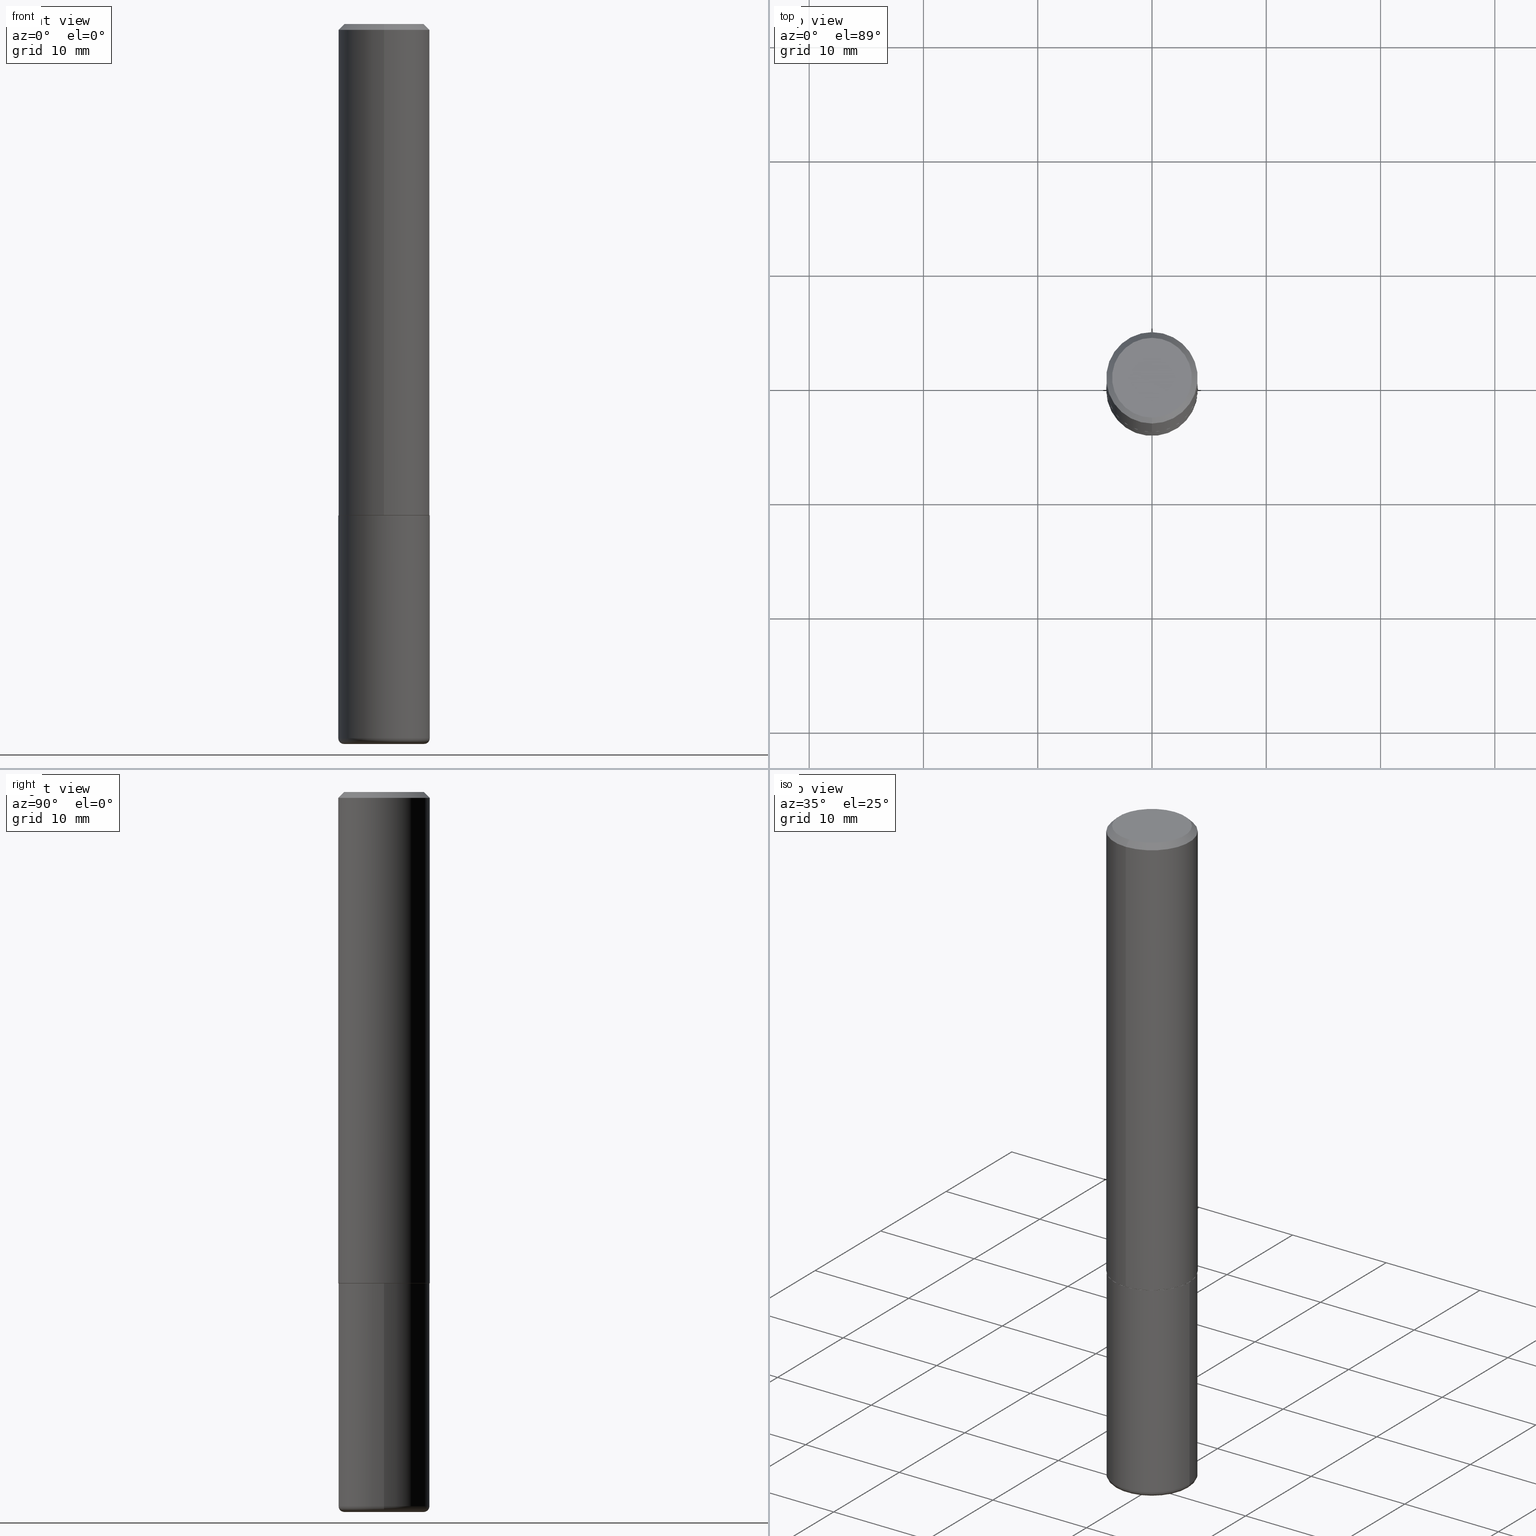
[diagram: canonical four-view strip — front | top / right | iso, engineering-drawing reading convention]
A machine part, canonical four-view strip (front | top / right | iso — engineering-drawing reading convention). The complete STEP part file that produces these views, byte-faithful:
ISO-10303-21;
HEADER;
FILE_DESCRIPTION (( 'STEP AP203' ),
    '1' );
FILE_NAME ('40015.STEP',
    '2024-03-03T20:25:39',
    ( '' ),
    ( '' ),
    'SwSTEP 2.0',
    'SolidWorks 2023',
    '' );
FILE_SCHEMA (( 'CONFIG_CONTROL_DESIGN' ));
ENDSEC;

DATA;
#1 = DATE_AND_TIME ( #74, #130 ) ;
#2 = CARTESIAN_POINT ( 'NONE',  ( -0.1378000000000000058, -7.576413724195261400E-15, -2.480300000000000171 ) ) ;
#3 = CIRCLE ( 'NONE', #58, 0.01970000000000002999 ) ;
#4 = AXIS2_PLACEMENT_3D ( 'NONE', #233, #121, #325 ) ;
#5 = AXIS2_PLACEMENT_3D ( 'NONE', #241, #361, #64 ) ;
#6 = ORIENTED_EDGE ( 'NONE', *, *, #44, .T. ) ;
#7 = DIRECTION ( 'NONE',  ( -2.446894125154584110E-29, 3.489440200954778984E-15, 1.000000000000000000 ) ) ;
#8 = EDGE_LOOP ( 'NONE', ( #148, #277, #213, #281 ) ) ;
#9 = EDGE_LOOP ( 'NONE', ( #354, #48 ) ) ;
#10 = APPROVAL_DATE_TIME ( #360, #57 ) ;
#11 = CARTESIAN_POINT ( 'NONE',  ( -1.080528434649015779E-15, -0.1575000000000000844, -0.01999999999999948347 ) ) ;
#12 = ORIENTED_EDGE ( 'NONE', *, *, #162, .T. ) ;
#13 = EDGE_CURVE ( 'NONE', #36, #187, #312, .T. ) ;
#14 = ORIENTED_EDGE ( 'NONE', *, *, #37, .F. ) ;
#15 = CIRCLE ( 'NONE', #416, 0.1565000000000000002 ) ;
#16 = CARTESIAN_POINT ( 'NONE',  ( 4.142347064474196087E-29, -5.907273316196346648E-15, -1.692900000000000293 ) ) ;
#17 = DIRECTION ( 'NONE',  ( 6.982962677686265922E-15, 1.000000000000000000, -3.489440200954778984E-15 ) ) ;
#18 = VERTEX_POINT ( 'NONE', #2 ) ;
#19 = ADVANCED_FACE ( 'NONE', ( #179 ), #240, .T. ) ;
#20 = DIRECTION ( 'NONE',  ( -2.446894125154584110E-29, 3.489440200954778984E-15, 1.000000000000000000 ) ) ;
#21 = DIRECTION ( 'NONE',  ( -2.445468806185136597E-29, 3.491481338843145583E-15, 1.000000000000000000 ) ) ;
#22 = CARTESIAN_POINT ( 'NONE',  ( 0.000000000000000000, 0.000000000000000000, 0.000000000000000000 ) ) ;
#23 = CARTESIAN_POINT ( 'NONE',  ( -1.080528434649015779E-15, -0.1575000000000000844, -0.01999999999999948347 ) ) ;
#24 = DIRECTION ( 'NONE',  ( 7.105427357601001859E-15, 1.000000000000000000, -3.491481338843145583E-15 ) ) ;
#25 = ORIENTED_EDGE ( 'NONE', *, *, #173, .F. ) ;
#26 = APPROVAL_PERSON_ORGANIZATION ( #29, #57, #300 ) ;
#27 = ADVANCED_FACE ( 'NONE', ( #394 ), #222, .F. ) ;
#28 = FACE_OUTER_BOUND ( 'NONE', #249, .T. ) ;
#29 = PERSON_AND_ORGANIZATION ( #289, #336 ) ;
#30 =( NAMED_UNIT ( * ) PLANE_ANGLE_UNIT ( ) SI_UNIT ( $, .RADIAN. ) );
#31 =( LENGTH_UNIT ( ) NAMED_UNIT ( * ) SI_UNIT ( $, .METRE. ) );
#32 = APPLICATION_PROTOCOL_DEFINITION ( 'international standard', 'config_control_design', 1994, #87 ) ;
#33 = EDGE_CURVE ( 'NONE', #18, #189, #229, .T. ) ;
#34 = AXIS2_PLACEMENT_3D ( 'NONE', #275, #174, #266 ) ;
#35 = EDGE_LOOP ( 'NONE', ( #313, #402, #353, #338 ) ) ;
#36 = VERTEX_POINT ( 'NONE', #214 ) ;
#37 = EDGE_CURVE ( 'NONE', #217, #187, #298, .T. ) ;
#38 = CARTESIAN_POINT ( 'NONE',  ( 1.111999381464598010E-15, 0.1564999999999940883, -1.692900000000000960 ) ) ;
#39 = CALENDAR_DATE ( 2024, 3, 3 ) ;
#40 = DIRECTION ( 'NONE',  ( 1.000000000000000000, -6.982962677686273021E-15, 4.883557194083115143E-29 ) ) ;
#41 = EDGE_LOOP ( 'NONE', ( #282, #114 ) ) ;
#42 = CIRCLE ( 'NONE', #4, 0.1575000000000000011 ) ;
#43 = VECTOR ( 'NONE', #316, 39.37007874015748143 ) ;
#44 = EDGE_CURVE ( 'NONE', #18, #376, #204, .T. ) ;
#45 = CARTESIAN_POINT ( 'NONE',  ( 4.893788250309175717E-31, -6.978880401909569159E-17, -0.02000000000000003511 ) ) ;
#46 = FACE_OUTER_BOUND ( 'NONE', #307, .T. ) ;
#47 = CARTESIAN_POINT ( 'NONE',  ( 4.139934141990818918E-29, -5.910728758527562653E-15, -1.692900000000000293 ) ) ;
#48 = ORIENTED_EDGE ( 'NONE', *, *, #33, .F. ) ;
#49 = LINE ( 'NONE', #226, #235 ) ;
#50 = AXIS2_PLACEMENT_3D ( 'NONE', #390, #220, #244 ) ;
#51 = AXIS2_PLACEMENT_3D ( 'NONE', #384, #236, #356 ) ;
#52 = ORIENTED_EDGE ( 'NONE', *, *, #37, .T. ) ;
#53 = DIRECTION ( 'NONE',  ( -6.982962677686265922E-15, -1.000000000000000000, 3.491179544618866730E-15 ) ) ;
#54 = VERTEX_POINT ( 'NONE', #55 ) ;
#55 = CARTESIAN_POINT ( 'NONE',  ( 1.029986994958724774E-15, 0.1375000000000000944, -5.398378589523385849E-16 ) ) ;
#56 = CARTESIAN_POINT ( 'NONE',  ( 0.1575000000000000011, -7.010545380263150133E-15, -1.692900000000000293 ) ) ;
#57 = APPROVAL ( #61, 'UNSPECIFIED' ) ;
#58 = AXIS2_PLACEMENT_3D ( 'NONE', #160, #181, #320 ) ;
#59 = SECURITY_CLASSIFICATION ( '', '', #110 ) ;
#60 = EDGE_CURVE ( 'NONE', #105, #54, #184, .T. ) ;
#61 = APPROVAL_STATUS ( 'not_yet_approved' ) ;
#62 = LINE ( 'NONE', #207, #254 ) ;
#63 = EDGE_LOOP ( 'NONE', ( #293, #259 ) ) ;
#64 = DIRECTION ( 'NONE',  ( 1.000000000000000000, 0.000000000000000000, 0.000000000000000000 ) ) ;
#65 = CIRCLE ( 'NONE', #357, 0.1378000000000000058 ) ;
#66 = LOCAL_TIME ( 15, 25, 39.00000000000000000, #382 ) ;
#67 = EDGE_CURVE ( 'NONE', #54, #105, #215, .T. ) ;
#68 = PERSON_AND_ORGANIZATION_ROLE ( 'design_owner' ) ;
#69 = APPROVAL_STATUS ( 'not_yet_approved' ) ;
#70 = ORIENTED_EDGE ( 'NONE', *, *, #211, .T. ) ;
#71 = CALENDAR_DATE ( 2024, 3, 3 ) ;
#72 = AXIS2_PLACEMENT_3D ( 'NONE', #411, #260, #157 ) ;
#73 = LOCAL_TIME ( 15, 25, 39.00000000000000000, #146 ) ;
#74 = CALENDAR_DATE ( 2024, 3, 3 ) ;
#75 = ORIENTED_EDGE ( 'NONE', *, *, #247, .T. ) ;
#76 = SHAPE_DEFINITION_REPRESENTATION ( #127, #308 ) ;
#77 = ORIENTED_EDGE ( 'NONE', *, *, #349, .F. ) ;
#78 = FACE_OUTER_BOUND ( 'NONE', #221, .T. ) ;
#79 = CC_DESIGN_DATE_AND_TIME_ASSIGNMENT ( #256, #251, ( #418 ) ) ;
#80 = CARTESIAN_POINT ( 'NONE',  ( 4.139900170349041117E-29, -5.903783875995391742E-15, -1.691900000000000404 ) ) ;
#81 = ORIENTED_EDGE ( 'NONE', *, *, #88, .F. ) ;
#82 = CARTESIAN_POINT ( 'NONE',  ( -1.099816621735546854E-15, -0.1575000000000061351, -1.691899999999999737 ) ) ;
#83 = ORIENTED_EDGE ( 'NONE', *, *, #247, .F. ) ;
#84 = VECTOR ( 'NONE', #317, 39.37007874015748143 ) ;
#85 = APPROVAL_PERSON_ORGANIZATION ( #332, #359, #392 ) ;
#86 = DIRECTION ( 'NONE',  ( -2.446894125154584110E-29, 3.489440200954778984E-15, 1.000000000000000000 ) ) ;
#87 = APPLICATION_CONTEXT ( 'configuration controlled 3d designs of mechanical parts and assemblies' ) ;
#88 = EDGE_CURVE ( 'NONE', #177, #376, #118, .T. ) ;
#89 = CARTESIAN_POINT ( 'NONE',  ( -0.1575000000000000011, -6.131829061620345009E-15, -1.692900000000000293 ) ) ;
#90 = DIRECTION ( 'NONE',  ( -2.446894125154584110E-29, 3.489440200954778984E-15, 1.000000000000000000 ) ) ;
#91 = DIRECTION ( 'NONE',  ( -6.982962677686265133E-15, -1.000000000000000000, 3.489440200954778195E-15 ) ) ;
#92 = CARTESIAN_POINT ( 'NONE',  ( 0.000000000000000000, 0.000000000000000000, 0.000000000000000000 ) ) ;
#93 = AXIS2_PLACEMENT_3D ( 'NONE', #145, #304, #40 ) ;
#94 = EDGE_LOOP ( 'NONE', ( #223, #70, #119, #25 ) ) ;
#95 = EDGE_CURVE ( 'NONE', #152, #339, #274, .T. ) ;
#96 = AXIS2_PLACEMENT_3D ( 'NONE', #350, #20, #347 ) ;
#97 = CC_DESIGN_PERSON_AND_ORGANIZATION_ASSIGNMENT ( #248, #238, ( #59 ) ) ;
#98 = CARTESIAN_POINT ( 'NONE',  ( -0.1575000000000000011, 1.119104808822157801E-15, -7.747322767151475583E-30 ) ) ;
#99 = PERSON_AND_ORGANIZATION ( #289, #336 ) ;
#100 = EDGE_CURVE ( 'NONE', #105, #231, #193, .T. ) ;
#101 = DIRECTION ( 'NONE',  ( 5.024295867788490741E-15, 0.7071067811866103003, 0.7071067811864847341 ) ) ;
#102 = CIRCLE ( 'NONE', #150, 0.1575000000000002232 ) ;
#103 = CC_DESIGN_APPROVAL ( #57, ( #318 ) ) ;
#104 = ADVANCED_FACE ( 'NONE', ( #198 ), #208, .T. ) ;
#105 = VERTEX_POINT ( 'NONE', #284 ) ;
#106 = CARTESIAN_POINT ( 'NONE',  ( 0.1378000000000000058, -9.622173421717822812E-15, -2.480300000000000171 ) ) ;
#107 = CARTESIAN_POINT ( 'NONE',  ( 4.139900170349041117E-29, -5.903783875995391742E-15, -1.691900000000000404 ) ) ;
#108 = AXIS2_PLACEMENT_3D ( 'NONE', #408, #232, #319 ) ;
#109 = CC_DESIGN_DATE_AND_TIME_ASSIGNMENT ( #415, #385, ( #59 ) ) ;
#110 = SECURITY_CLASSIFICATION_LEVEL ( 'unclassified' ) ;
#111 = ORIENTED_EDGE ( 'NONE', *, *, #95, .T. ) ;
#112 = ORIENTED_EDGE ( 'NONE', *, *, #378, .T. ) ;
#113 = DIRECTION ( 'NONE',  ( 1.000000000000000000, -6.982962677686265922E-15, 0.000000000000000000 ) ) ;
#114 = ORIENTED_EDGE ( 'NONE', *, *, #183, .F. ) ;
#115 = DIRECTION ( 'NONE',  ( -6.982962677686265922E-15, -1.000000000000000000, 3.491179544618866730E-15 ) ) ;
#116 = DIRECTION ( 'NONE',  ( -2.446894125154584110E-29, 3.489440200954778984E-15, 1.000000000000000000 ) ) ;
#117 = DIRECTION ( 'NONE',  ( -2.445468806185136597E-29, 3.491481338843145583E-15, 1.000000000000000000 ) ) ;
#118 = CIRCLE ( 'NONE', #375, 0.1575000000000000011 ) ;
#119 = ORIENTED_EDGE ( 'NONE', *, *, #349, .T. ) ;
#120 = CARTESIAN_POINT ( 'NONE',  ( 4.139934141990818918E-29, -5.910728758527562653E-15, -1.692900000000000293 ) ) ;
#121 = DIRECTION ( 'NONE',  ( -2.445468806185136597E-29, 3.491481338843145583E-15, 1.000000000000000000 ) ) ;
#122 = EDGE_CURVE ( 'NONE', #339, #152, #129, .T. ) ;
#123 = EDGE_LOOP ( 'NONE', ( #374, #252, #165, #369 ) ) ;
#124 = LINE ( 'NONE', #258, #43 ) ;
#125 = ORIENTED_EDGE ( 'NONE', *, *, #122, .T. ) ;
#126 = DIRECTION ( 'NONE',  ( -1.000000000000000000, 7.105427357601014480E-15, 0.000000000000000000 ) ) ;
#127 = PRODUCT_DEFINITION_SHAPE ( 'NONE', 'NONE',  #418 ) ;
#128 = APPROVAL ( #151, 'UNSPECIFIED' ) ;
#129 = CIRCLE ( 'NONE', #239, 0.1575000000000000011 ) ;
#130 = LOCAL_TIME ( 15, 25, 39.00000000000000000, #182 ) ;
#131 = VERTEX_POINT ( 'NONE', #344 ) ;
#132 = ADVANCED_FACE ( 'NONE', ( #194 ), #326, .T. ) ;
#133 = FACE_OUTER_BOUND ( 'NONE', #377, .T. ) ;
#134 = CIRCLE ( 'NONE', #191, 0.1575000000000000289 ) ;
#135 = PERSON_AND_ORGANIZATION ( #289, #336 ) ;
#136 = PERSON_AND_ORGANIZATION_ROLE ( 'design_supplier' ) ;
#137 =( CONVERSION_BASED_UNIT ( 'INCH', #141 ) LENGTH_UNIT ( ) NAMED_UNIT ( #197 ) );
#138 = LINE ( 'NONE', #348, #299 ) ;
#139 = EDGE_CURVE ( 'NONE', #376, #177, #42, .T. ) ;
#140 = CC_DESIGN_PERSON_AND_ORGANIZATION_ASSIGNMENT ( #99, #68, ( #414 ) ) ;
#141 = LENGTH_MEASURE_WITH_UNIT ( LENGTH_MEASURE( 0.02539999999999999897 ), #31 );
#142 = AXIS2_PLACEMENT_3D ( 'NONE', #45, #364, #147 ) ;
#143 = ADVANCED_FACE ( 'NONE', ( #199 ), #379, .T. ) ;
#144 = ORIENTED_EDGE ( 'NONE', *, *, #100, .T. ) ;
#145 = CARTESIAN_POINT ( 'NONE',  ( 6.017320544499148018E-29, -8.591138982357444151E-15, -2.460600000000000342 ) ) ;
#146 = COORDINATED_UNIVERSAL_TIME_OFFSET ( 5, 0, .BEHIND. ) ;
#147 = DIRECTION ( 'NONE',  ( 6.982962677686264344E-15, 1.000000000000000000, -3.496114991891764787E-15 ) ) ;
#148 = ORIENTED_EDGE ( 'NONE', *, *, #88, .T. ) ;
#149 = DIRECTION ( 'NONE',  ( 2.446894125154583830E-29, -3.489440200954778984E-15, -1.000000000000000000 ) ) ;
#150 = AXIS2_PLACEMENT_3D ( 'NONE', #80, #250, #314 ) ;
#151 = APPROVAL_STATUS ( 'not_yet_approved' ) ;
#152 = VERTEX_POINT ( 'NONE', #56 ) ;
#153 = ADVANCED_FACE ( 'NONE', ( #133 ), #158, .T. ) ;
#154 = DIRECTION ( 'NONE',  ( -6.982962677686265922E-15, -1.000000000000000000, 3.491179544618866730E-15 ) ) ;
#155 = ORIENTED_EDGE ( 'NONE', *, *, #60, .F. ) ;
#156 = LINE ( 'NONE', #334, #413 ) ;
#157 = DIRECTION ( 'NONE',  ( -6.982962677686265922E-15, -1.000000000000000000, 3.489440200954779378E-15 ) ) ;
#158 = CYLINDRICAL_SURFACE ( 'NONE', #268, 0.1575000000000001399 ) ;
#159 = AXIS2_PLACEMENT_3D ( 'NONE', #167, #290, #412 ) ;
#160 = CARTESIAN_POINT ( 'NONE',  ( 0.1378000000000000058, -9.553391239342613205E-15, -2.460600000000000342 ) ) ;
#161 = APPROVAL_PERSON_ORGANIZATION ( #209, #128, #331 ) ;
#162 = EDGE_CURVE ( 'NONE', #189, #18, #65, .T. ) ;
#163 = VERTEX_POINT ( 'NONE', #343 ) ;
#164 = CARTESIAN_POINT ( 'NONE',  ( -0.1575000000000000289, -7.472034173535286547E-15, -2.460599999999999898 ) ) ;
#165 = ORIENTED_EDGE ( 'NONE', *, *, #276, .T. ) ;
#166 = CARTESIAN_POINT ( 'NONE',  ( 6.065496279980994755E-29, -8.659921164732655335E-15, -2.480300000000000171 ) ) ;
#167 = CARTESIAN_POINT ( 'NONE',  ( 4.142347064474196087E-29, -5.907273316196346648E-15, -1.692900000000000293 ) ) ;
#168 = DIRECTION ( 'NONE',  ( -2.446894125154584110E-29, 3.489440200954778984E-15, 1.000000000000000000 ) ) ;
#169 = UNCERTAINTY_MEASURE_WITH_UNIT (LENGTH_MEASURE( 1.000000000000000082E-05 ), #137, 'distance_accuracy_value', 'NONE');
#170 = DIRECTION ( 'NONE',  ( -2.445468806185136597E-29, 3.491481338843145583E-15, 1.000000000000000000 ) ) ;
#171 = AXIS2_PLACEMENT_3D ( 'NONE', #341, #149, #17 ) ;
#172 = DIRECTION ( 'NONE',  ( 1.000000000000000000, -6.982962677686273021E-15, 4.883557194083115143E-29 ) ) ;
#173 = EDGE_CURVE ( 'NONE', #163, #231, #134, .T. ) ;
#174 = DIRECTION ( 'NONE',  ( -2.445468806185136597E-29, 3.491481338843145583E-15, 1.000000000000000000 ) ) ;
#175 = DIRECTION ( 'NONE',  ( 2.446894125154584110E-29, -3.489440200954778984E-15, -1.000000000000000000 ) ) ;
#176 = CARTESIAN_POINT ( 'NONE',  ( 4.142347064474196087E-29, -5.907273316196346648E-15, -1.692900000000000293 ) ) ;
#177 = VERTEX_POINT ( 'NONE', #253 ) ;
#178 = AXIS2_PLACEMENT_3D ( 'NONE', #16, #7, #154 ) ;
#179 = FACE_OUTER_BOUND ( 'NONE', #8, .T. ) ;
#180 = EDGE_CURVE ( 'NONE', #177, #152, #156, .T. ) ;
#181 = DIRECTION ( 'NONE',  ( -6.982962677686266711E-15, -1.000000000000000000, 3.491481338843145583E-15 ) ) ;
#182 = COORDINATED_UNIVERSAL_TIME_OFFSET ( 5, 0, .BEHIND. ) ;
#183 = EDGE_CURVE ( 'NONE', #36, #131, #351, .T. ) ;
#184 = CIRCLE ( 'NONE', #96, 0.1375000000000000944 ) ;
#185 = CONICAL_SURFACE ( 'NONE', #196, 0.1565000000000000002, 0.7853981633975336552 ) ;
#186 = CARTESIAN_POINT ( 'NONE',  ( 4.893788250309175717E-31, -6.978880401909569159E-17, -0.02000000000000003511 ) ) ;
#187 = VERTEX_POINT ( 'NONE', #397 ) ;
#188 = DIRECTION ( 'NONE',  ( -2.446894125154584110E-29, 3.489440200954778984E-15, 1.000000000000000000 ) ) ;
#189 = VERTEX_POINT ( 'NONE', #106 ) ;
#190 = ORIENTED_EDGE ( 'NONE', *, *, #296, .T. ) ;
#191 = AXIS2_PLACEMENT_3D ( 'NONE', #186, #188, #306 ) ;
#192 = CYLINDRICAL_SURFACE ( 'NONE', #295, 0.1575000000000000011 ) ;
#193 = LINE ( 'NONE', #23, #84 ) ;
#194 = FACE_OUTER_BOUND ( 'NONE', #9, .T. ) ;
#195 = DIRECTION ( 'NONE',  ( 2.438088387897960049E-29, -3.491481338843145188E-15, -1.000000000000000000 ) ) ;
#196 = AXIS2_PLACEMENT_3D ( 'NONE', #176, #86, #115 ) ;
#197 = DIMENSIONAL_EXPONENTS ( 1.000000000000000000, 0.000000000000000000, 0.000000000000000000, 0.000000000000000000, 0.000000000000000000, 0.000000000000000000, 0.000000000000000000 ) ;
#198 = FACE_OUTER_BOUND ( 'NONE', #305, .T. ) ;
#199 = FACE_OUTER_BOUND ( 'NONE', #218, .T. ) ;
#200 = DIRECTION ( 'NONE',  ( -2.446894125154584110E-29, 3.489440200954778984E-15, 1.000000000000000000 ) ) ;
#201 = DIRECTION ( 'NONE',  ( -2.446894125154584110E-29, 3.489440200954778984E-15, 1.000000000000000000 ) ) ;
#202 = DIRECTION ( 'NONE',  ( -2.445468806185136597E-29, 3.491481338843145583E-15, 1.000000000000000000 ) ) ;
#203 = AXIS2_PLACEMENT_3D ( 'NONE', #120, #195, #352 ) ;
#204 = CIRCLE ( 'NONE', #330, 0.01970000000000002999 ) ;
#205 = CONICAL_SURFACE ( 'NONE', #262, 0.1575000000000000289, 0.7853981633974471688 ) ;
#206 = PERSON_AND_ORGANIZATION ( #289, #336 ) ;
#207 = CARTESIAN_POINT ( 'NONE',  ( -1.092833659057859065E-15, -0.1565000000000058844, -1.692899999999999849 ) ) ;
#208 = CONICAL_SURFACE ( 'NONE', #159, 0.1565000000000000002, 0.7853981633975336552 ) ;
#209 = PERSON_AND_ORGANIZATION ( #289, #336 ) ;
#210 = APPLICATION_PROTOCOL_DEFINITION ( 'international standard', 'config_control_design', 1994, #264 ) ;
#211 = EDGE_CURVE ( 'NONE', #187, #217, #102, .T. ) ;
#212 = MECHANICAL_CONTEXT ( 'NONE', #87, 'mechanical' ) ;
#213 = ORIENTED_EDGE ( 'NONE', *, *, #95, .F. ) ;
#214 = CARTESIAN_POINT ( 'NONE',  ( 1.115552095143399501E-15, 0.1564999999999940883, -1.692900000000000960 ) ) ;
#215 = CIRCLE ( 'NONE', #72, 0.1375000000000000944 ) ;
#216 = DATE_AND_TIME ( #71, #246 ) ;
#217 = VERTEX_POINT ( 'NONE', #82 ) ;
#218 = EDGE_LOOP ( 'NONE', ( #12, #6, #81, #327 ) ) ;
#219 = PLANE ( 'NONE',  #203 ) ;
#220 = DIRECTION ( 'NONE',  ( -2.445468806185136597E-29, 3.491481338843145583E-15, 1.000000000000000000 ) ) ;
#221 = EDGE_LOOP ( 'NONE', ( #111, #125 ) ) ;
#222 = PLANE ( 'NONE',  #171 ) ;
#223 = ORIENTED_EDGE ( 'NONE', *, *, #378, .F. ) ;
#224 = DIRECTION ( 'NONE',  ( 1.000000000000000000, -6.982962677686268288E-15, 0.000000000000000000 ) ) ;
#225 = ADVANCED_FACE ( 'NONE', ( #404 ), #355, .T. ) ;
#226 = CARTESIAN_POINT ( 'NONE',  ( -1.099816621735587677E-15, -0.1575000000000001399, 5.495868316503780705E-16 ) ) ;
#227 = CARTESIAN_POINT ( 'NONE',  ( 4.893788250309175717E-31, -6.978880401909569159E-17, -0.02000000000000003511 ) ) ;
#228 = CARTESIAN_POINT ( 'NONE',  ( 6.017320544499146897E-29, -8.591138982357444151E-15, -2.460599999999999898 ) ) ;
#229 = CIRCLE ( 'NONE', #50, 0.1378000000000000058 ) ;
#230 = DIRECTION ( 'NONE',  ( 1.000000000000000000, -6.982962677686265922E-15, 4.876176775795935232E-29 ) ) ;
#231 = VERTEX_POINT ( 'NONE', #11 ) ;
#232 = DIRECTION ( 'NONE',  ( 2.438088387897960049E-29, -3.491481338843145188E-15, -1.000000000000000000 ) ) ;
#233 = CARTESIAN_POINT ( 'NONE',  ( 6.017320544499146897E-29, -8.591138982357444151E-15, -2.460599999999999898 ) ) ;
#234 = CLOSED_SHELL ( 'NONE', ( #19, #143, #263, #391, #225, #132 ) ) ;
#235 = VECTOR ( 'NONE', #373, 39.37007874015748143 ) ;
#236 = DIRECTION ( 'NONE',  ( -2.446894125154583830E-29, 3.489440200954778984E-15, 1.000000000000000000 ) ) ;
#237 = CC_DESIGN_PERSON_AND_ORGANIZATION_ASSIGNMENT ( #297, #136, ( #318 ) ) ;
#238 = PERSON_AND_ORGANIZATION_ROLE ( 'classification_officer' ) ;
#239 = AXIS2_PLACEMENT_3D ( 'NONE', #403, #117, #224 ) ;
#240 = CYLINDRICAL_SURFACE ( 'NONE', #34, 0.1575000000000000011 ) ;
#241 = CARTESIAN_POINT ( 'NONE',  ( 0.000000000000000000, 0.000000000000000000, 0.000000000000000000 ) ) ;
#242 = ADVANCED_FACE ( 'NONE', ( #245 ), #342, .T. ) ;
#243 = ORIENTED_EDGE ( 'NONE', *, *, #291, .F. ) ;
#244 = DIRECTION ( 'NONE',  ( 1.000000000000000000, -6.982962677686265922E-15, 0.000000000000000000 ) ) ;
#245 = FACE_OUTER_BOUND ( 'NONE', #265, .T. ) ;
#246 = LOCAL_TIME ( 15, 25, 39.00000000000000000, #363 ) ;
#247 = EDGE_CURVE ( 'NONE', #231, #163, #292, .T. ) ;
#248 = PERSON_AND_ORGANIZATION ( #289, #336 ) ;
#249 = EDGE_LOOP ( 'NONE', ( #190, #393, #14, #340 ) ) ;
#250 = DIRECTION ( 'NONE',  ( -2.446894125154584110E-29, 3.489440200954778984E-15, 1.000000000000000000 ) ) ;
#251 = DATE_TIME_ROLE ( 'creation_date' ) ;
#252 = ORIENTED_EDGE ( 'NONE', *, *, #33, .T. ) ;
#253 = CARTESIAN_POINT ( 'NONE',  ( 0.1575000000000000289, -9.690955604093032420E-15, -2.460599999999999898 ) ) ;
#254 = VECTOR ( 'NONE', #329, 39.37007874015748143 ) ;
#255 = DIRECTION ( 'NONE',  ( -6.982962677686265922E-15, -1.000000000000000000, 3.469013325287948560E-15 ) ) ;
#256 = DATE_AND_TIME ( #395, #328 ) ;
#257 = CYLINDRICAL_SURFACE ( 'NONE', #303, 0.1575000000000001399 ) ;
#258 = CARTESIAN_POINT ( 'NONE',  ( 1.119104808822158392E-15, 0.1575000000000001399, -5.495868316503780705E-16 ) ) ;
#259 = ORIENTED_EDGE ( 'NONE', *, *, #60, .T. ) ;
#260 = DIRECTION ( 'NONE',  ( -2.446894125154584110E-29, 3.489440200954778984E-15, 1.000000000000000000 ) ) ;
#261 = CLOSED_SHELL ( 'NONE', ( #405, #153, #242, #322, #302, #104, #362, #27 ) ) ;
#262 = AXIS2_PLACEMENT_3D ( 'NONE', #227, #175, #272 ) ;
#263 = ADVANCED_FACE ( 'NONE', ( #78 ), #219, .F. ) ;
#264 = APPLICATION_CONTEXT ( 'configuration controlled 3d designs of mechanical parts and assemblies' ) ;
#265 = EDGE_LOOP ( 'NONE', ( #155, #144, #75, #389 ) ) ;
#266 = DIRECTION ( 'NONE',  ( 1.000000000000000000, -6.982962677686265922E-15, 4.876176775795935232E-29 ) ) ;
#267 = DIRECTION ( 'NONE',  ( -2.445468806185136877E-29, 3.491481338843145188E-15, 1.000000000000000000 ) ) ;
#268 = AXIS2_PLACEMENT_3D ( 'NONE', #279, #168, #91 ) ;
#269 = CC_DESIGN_APPROVAL ( #359, ( #418 ) ) ;
#270 = PERSON_AND_ORGANIZATION_ROLE ( 'creator' ) ;
#271 = FACE_OUTER_BOUND ( 'NONE', #94, .T. ) ;
#272 = DIRECTION ( 'NONE',  ( 6.982962677686264344E-15, 1.000000000000000000, -3.496114991891764787E-15 ) ) ;
#273 = MANIFOLD_SOLID_BREP ( 'Body-Move/Copy2[2]', #261 ) ;
#274 = CIRCLE ( 'NONE', #335, 0.1575000000000000011 ) ;
#275 = CARTESIAN_POINT ( 'NONE',  ( 0.000000000000000000, 0.000000000000000000, 0.000000000000000000 ) ) ;
#276 = EDGE_CURVE ( 'NONE', #189, #177, #3, .T. ) ;
#277 = ORIENTED_EDGE ( 'NONE', *, *, #291, .T. ) ;
#278 = CARTESIAN_POINT ( 'NONE',  ( 4.893788250309175717E-31, -6.978880401909569159E-17, -0.02000000000000003511 ) ) ;
#279 = CARTESIAN_POINT ( 'NONE',  ( 0.000000000000000000, 0.000000000000000000, 0.000000000000000000 ) ) ;
#280 = APPROVAL_DATE_TIME ( #1, #128 ) ;
#281 = ORIENTED_EDGE ( 'NONE', *, *, #180, .F. ) ;
#282 = ORIENTED_EDGE ( 'NONE', *, *, #296, .F. ) ;
#283 = MANIFOLD_SOLID_BREP ( 'Body-Move/Copy2[1]', #234 ) ;
#284 = CARTESIAN_POINT ( 'NONE',  ( -1.011923454671301040E-15, -0.1375000000000000944, 4.197581963102262963E-16 ) ) ;
#285 = ORIENTED_EDGE ( 'NONE', *, *, #183, .T. ) ;
#286 = DIRECTION ( 'NONE',  ( 1.000000000000000000, -6.982962677686268288E-15, 0.000000000000000000 ) ) ;
#287 = AXIS2_PLACEMENT_3D ( 'NONE', #107, #201, #255 ) ;
#288 = DIRECTION ( 'NONE',  ( 4.937700262164541731E-15, 0.7071067811865442421, -0.7071067811865507924 ) ) ;
#289 = PERSON ( 'UNSPECIFIED', 'UNSPECIFIED', 'UNSPECIFIED', ('UNSPECIFIED'), ('UNSPECIFIED'), ('UNSPECIFIED') ) ;
#290 = DIRECTION ( 'NONE',  ( -2.446894125154584110E-29, 3.489440200954778984E-15, 1.000000000000000000 ) ) ;
#291 = EDGE_CURVE ( 'NONE', #376, #339, #409, .T. ) ;
#292 = CIRCLE ( 'NONE', #370, 0.1575000000000000289 ) ;
#293 = ORIENTED_EDGE ( 'NONE', *, *, #67, .T. ) ;
#294 = ORIENTED_EDGE ( 'NONE', *, *, #139, .T. ) ;
#295 = AXIS2_PLACEMENT_3D ( 'NONE', #92, #21, #230 ) ;
#296 = EDGE_CURVE ( 'NONE', #131, #36, #15, .T. ) ;
#297 = PERSON_AND_ORGANIZATION ( #289, #336 ) ;
#298 = CIRCLE ( 'NONE', #287, 0.1575000000000002232 ) ;
#299 = VECTOR ( 'NONE', #288, 39.37007874015748143 ) ;
#300 = APPROVAL_ROLE ( '' ) ;
#301 = CARTESIAN_POINT ( 'NONE',  ( 4.142347064474196087E-29, -5.907273316196346648E-15, -1.692900000000000293 ) ) ;
#302 = ADVANCED_FACE ( 'NONE', ( #271 ), #257, .T. ) ;
#303 = AXIS2_PLACEMENT_3D ( 'NONE', #22, #200, #371 ) ;
#304 = DIRECTION ( 'NONE',  ( -2.445468806185136597E-29, 3.491481338843145583E-15, 1.000000000000000000 ) ) ;
#305 = EDGE_LOOP ( 'NONE', ( #321, #285, #400, #396 ) ) ;
#306 = DIRECTION ( 'NONE',  ( -6.982962677686264344E-15, -1.000000000000000000, 3.496114991891764787E-15 ) ) ;
#307 = EDGE_LOOP ( 'NONE', ( #243, #294, #410, #367 ) ) ;
#308 = ADVANCED_BREP_SHAPE_REPRESENTATION ( '40015', ( #283, #273, #5 ), #309 ) ;
#309 =( GEOMETRIC_REPRESENTATION_CONTEXT ( 3 ) GLOBAL_UNCERTAINTY_ASSIGNED_CONTEXT ( ( #169 ) ) GLOBAL_UNIT_ASSIGNED_CONTEXT ( ( #137, #30, #388 ) ) REPRESENTATION_CONTEXT ( 'NONE', 'WORKASPACE' ) );
#310 = DIRECTION ( 'NONE',  ( -2.445468806185136877E-29, 3.491481338843145188E-15, 1.000000000000000000 ) ) ;
#311 = DESIGN_CONTEXT ( 'detailed design', #264, 'design' ) ;
#312 = LINE ( 'NONE', #38, #387 ) ;
#313 = ORIENTED_EDGE ( 'NONE', *, *, #100, .F. ) ;
#314 = DIRECTION ( 'NONE',  ( -6.982962677686265922E-15, -1.000000000000000000, 3.469013325287948560E-15 ) ) ;
#315 = CARTESIAN_POINT ( 'NONE',  ( 6.017320544499148018E-29, -8.591138982357444151E-15, -2.460600000000000342 ) ) ;
#316 = DIRECTION ( 'NONE',  ( -2.446894125154584390E-29, 3.489440200954778984E-15, 1.000000000000000000 ) ) ;
#317 = DIRECTION ( 'NONE',  ( -4.851104656540957964E-15, -0.7071067811865491270, -0.7071067811865459074 ) ) ;
#318 = PRODUCT_DEFINITION_FORMATION_WITH_SPECIFIED_SOURCE ( 'ANY', '', #414, .NOT_KNOWN. ) ;
#319 = DIRECTION ( 'NONE',  ( -1.000000000000000000, 6.982962677686265922E-15, -4.876176775795935793E-29 ) ) ;
#320 = DIRECTION ( 'NONE',  ( 1.000000000000000000, -6.982962677686317987E-15, 0.000000000000000000 ) ) ;
#321 = ORIENTED_EDGE ( 'NONE', *, *, #13, .F. ) ;
#322 = ADVANCED_FACE ( 'NONE', ( #406 ), #205, .T. ) ;
#323 = DIRECTION ( 'NONE',  ( -2.445468806185136597E-29, 3.491481338843145583E-15, 1.000000000000000000 ) ) ;
#324 = CC_DESIGN_PERSON_AND_ORGANIZATION_ASSIGNMENT ( #206, #417, ( #318 ) ) ;
#325 = DIRECTION ( 'NONE',  ( 1.000000000000000000, -6.982962677686268288E-15, 0.000000000000000000 ) ) ;
#326 = PLANE ( 'NONE',  #108 ) ;
#327 = ORIENTED_EDGE ( 'NONE', *, *, #276, .F. ) ;
#328 = LOCAL_TIME ( 15, 25, 39.00000000000000000, #383 ) ;
#329 = DIRECTION ( 'NONE',  ( -4.937700262164969294E-15, -0.7071067811866054154, 0.7071067811864896191 ) ) ;
#330 = AXIS2_PLACEMENT_3D ( 'NONE', #407, #24, #126 ) ;
#331 = APPROVAL_ROLE ( '' ) ;
#332 = PERSON_AND_ORGANIZATION ( #289, #336 ) ;
#333 = EDGE_CURVE ( 'NONE', #54, #163, #138, .T. ) ;
#334 = CARTESIAN_POINT ( 'NONE',  ( 0.1575000000000000011, -1.099816621735586889E-15, 7.679978421878598033E-30 ) ) ;
#335 = AXIS2_PLACEMENT_3D ( 'NONE', #47, #170, #372 ) ;
#336 = ORGANIZATION ( 'UNSPECIFIED', 'UNSPECIFIED', '' ) ;
#337 = APPROVAL_DATE_TIME ( #216, #359 ) ;
#338 = ORIENTED_EDGE ( 'NONE', *, *, #173, .T. ) ;
#339 = VERTEX_POINT ( 'NONE', #89 ) ;
#340 = ORIENTED_EDGE ( 'NONE', *, *, #399, .F. ) ;
#341 = CARTESIAN_POINT ( 'NONE',  ( 9.601573681818622643E-16, 0.1375000000000000944, -5.098179432918105990E-16 ) ) ;
#342 = CONICAL_SURFACE ( 'NONE', #142, 0.1575000000000000289, 0.7853981633974471688 ) ;
#343 = CARTESIAN_POINT ( 'NONE',  ( 1.099816621735587480E-15, 0.1574999999999999456, -0.02000000000000058328 ) ) ;
#344 = CARTESIAN_POINT ( 'NONE',  ( -1.092833659057859065E-15, -0.1565000000000058844, -1.692899999999999849 ) ) ;
#345 = CC_DESIGN_PERSON_AND_ORGANIZATION_ASSIGNMENT ( #135, #270, ( #418 ) ) ;
#346 = PLANE ( 'NONE',  #51 ) ;
#347 = DIRECTION ( 'NONE',  ( -6.982962677686265922E-15, -1.000000000000000000, 3.489440200954779378E-15 ) ) ;
#348 = CARTESIAN_POINT ( 'NONE',  ( 1.099816621735587480E-15, 0.1574999999999999456, -0.02000000000000058328 ) ) ;
#349 = EDGE_CURVE ( 'NONE', #217, #231, #49, .T. ) ;
#350 = CARTESIAN_POINT ( 'NONE',  ( 1.469111105347644946E-45, -2.095054010702372216E-31, -6.003983132105615665E-17 ) ) ;
#351 = CIRCLE ( 'NONE', #178, 0.1565000000000000002 ) ;
#352 = DIRECTION ( 'NONE',  ( -1.000000000000000000, 6.982962677686265922E-15, -4.876176775795935793E-29 ) ) ;
#353 = ORIENTED_EDGE ( 'NONE', *, *, #333, .T. ) ;
#354 = ORIENTED_EDGE ( 'NONE', *, *, #162, .F. ) ;
#355 = TOROIDAL_SURFACE ( 'NONE', #93, 0.1378000000000000058, 0.01970000000000002999 ) ;
#356 = DIRECTION ( 'NONE',  ( -6.982962677686265922E-15, -1.000000000000000000, 3.489440200954778984E-15 ) ) ;
#357 = AXIS2_PLACEMENT_3D ( 'NONE', #166, #401, #113 ) ;
#358 = CC_DESIGN_APPROVAL ( #128, ( #59 ) ) ;
#359 = APPROVAL ( #69, 'UNSPECIFIED' ) ;
#360 = DATE_AND_TIME ( #39, #66 ) ;
#361 = DIRECTION ( 'NONE',  ( 0.000000000000000000, 0.000000000000000000, 1.000000000000000000 ) ) ;
#362 = ADVANCED_FACE ( 'NONE', ( #380 ), #346, .F. ) ;
#363 = COORDINATED_UNIVERSAL_TIME_OFFSET ( 5, 0, .BEHIND. ) ;
#364 = DIRECTION ( 'NONE',  ( 2.446894125154584110E-29, -3.489440200954778984E-15, -1.000000000000000000 ) ) ;
#365 = CC_DESIGN_SECURITY_CLASSIFICATION ( #59, ( #318 ) ) ;
#366 = CALENDAR_DATE ( 2024, 3, 3 ) ;
#367 = ORIENTED_EDGE ( 'NONE', *, *, #122, .F. ) ;
#368 = DIRECTION ( 'NONE',  ( -6.982962677686264344E-15, -1.000000000000000000, 3.496114991891764787E-15 ) ) ;
#369 = ORIENTED_EDGE ( 'NONE', *, *, #139, .F. ) ;
#370 = AXIS2_PLACEMENT_3D ( 'NONE', #278, #116, #368 ) ;
#371 = DIRECTION ( 'NONE',  ( -6.982962677686265133E-15, -1.000000000000000000, 3.489440200954778195E-15 ) ) ;
#372 = DIRECTION ( 'NONE',  ( 1.000000000000000000, -6.982962677686268288E-15, 0.000000000000000000 ) ) ;
#373 = DIRECTION ( 'NONE',  ( -2.446894125154584390E-29, 3.489440200954778984E-15, 1.000000000000000000 ) ) ;
#374 = ORIENTED_EDGE ( 'NONE', *, *, #44, .F. ) ;
#375 = AXIS2_PLACEMENT_3D ( 'NONE', #228, #323, #286 ) ;
#376 = VERTEX_POINT ( 'NONE', #164 ) ;
#377 = EDGE_LOOP ( 'NONE', ( #52, #112, #83, #77 ) ) ;
#378 = EDGE_CURVE ( 'NONE', #187, #163, #124, .T. ) ;
#379 = TOROIDAL_SURFACE ( 'NONE', #398, 0.1378000000000000058, 0.01970000000000002999 ) ;
#380 = FACE_OUTER_BOUND ( 'NONE', #41, .T. ) ;
#381 = VECTOR ( 'NONE', #267, 39.37007874015748143 ) ;
#382 = COORDINATED_UNIVERSAL_TIME_OFFSET ( 5, 0, .BEHIND. ) ;
#383 = COORDINATED_UNIVERSAL_TIME_OFFSET ( 5, 0, .BEHIND. ) ;
#384 = CARTESIAN_POINT ( 'NONE',  ( 4.142347064474196087E-29, -5.907273316196346648E-15, -1.692900000000000293 ) ) ;
#385 = DATE_TIME_ROLE ( 'classification_date' ) ;
#386 = PRODUCT_RELATED_PRODUCT_CATEGORY ( 'detail', '', ( #414 ) ) ;
#387 = VECTOR ( 'NONE', #101, 39.37007874015748143 ) ;
#388 =( NAMED_UNIT ( * ) SI_UNIT ( $, .STERADIAN. ) SOLID_ANGLE_UNIT ( ) );
#389 = ORIENTED_EDGE ( 'NONE', *, *, #333, .F. ) ;
#390 = CARTESIAN_POINT ( 'NONE',  ( 6.065496279980994755E-29, -8.659921164732655335E-15, -2.480300000000000171 ) ) ;
#391 = ADVANCED_FACE ( 'NONE', ( #46 ), #192, .T. ) ;
#392 = APPROVAL_ROLE ( '' ) ;
#393 = ORIENTED_EDGE ( 'NONE', *, *, #13, .T. ) ;
#394 = FACE_OUTER_BOUND ( 'NONE', #63, .T. ) ;
#395 = CALENDAR_DATE ( 2024, 3, 3 ) ;
#396 = ORIENTED_EDGE ( 'NONE', *, *, #211, .F. ) ;
#397 = CARTESIAN_POINT ( 'NONE',  ( 1.119104808822179494E-15, 0.1574999999999943112, -1.691900000000000848 ) ) ;
#398 = AXIS2_PLACEMENT_3D ( 'NONE', #315, #202, #172 ) ;
#399 = EDGE_CURVE ( 'NONE', #131, #217, #62, .T. ) ;
#400 = ORIENTED_EDGE ( 'NONE', *, *, #399, .T. ) ;
#401 = DIRECTION ( 'NONE',  ( -2.445468806185136597E-29, 3.491481338843145583E-15, 1.000000000000000000 ) ) ;
#402 = ORIENTED_EDGE ( 'NONE', *, *, #67, .F. ) ;
#403 = CARTESIAN_POINT ( 'NONE',  ( 4.139934141990818918E-29, -5.910728758527562653E-15, -1.692900000000000293 ) ) ;
#404 = FACE_OUTER_BOUND ( 'NONE', #123, .T. ) ;
#405 = ADVANCED_FACE ( 'NONE', ( #28 ), #185, .T. ) ;
#406 = FACE_OUTER_BOUND ( 'NONE', #35, .T. ) ;
#407 = CARTESIAN_POINT ( 'NONE',  ( -0.1378000000000000058, -7.612011092480026645E-15, -2.460600000000000342 ) ) ;
#408 = CARTESIAN_POINT ( 'NONE',  ( 6.065496279980994755E-29, -8.659921164732655335E-15, -2.480300000000000171 ) ) ;
#409 = LINE ( 'NONE', #98, #381 ) ;
#410 = ORIENTED_EDGE ( 'NONE', *, *, #180, .T. ) ;
#411 = CARTESIAN_POINT ( 'NONE',  ( 1.469111105347644946E-45, -2.095054010702372216E-31, -6.003983132105615665E-17 ) ) ;
#412 = DIRECTION ( 'NONE',  ( -6.982962677686265922E-15, -1.000000000000000000, 3.491179544618866730E-15 ) ) ;
#413 = VECTOR ( 'NONE', #310, 39.37007874015748143 ) ;
#414 = PRODUCT ( '40015', '40015', '', ( #212 ) ) ;
#415 = DATE_AND_TIME ( #366, #73 ) ;
#416 = AXIS2_PLACEMENT_3D ( 'NONE', #301, #90, #53 ) ;
#417 = PERSON_AND_ORGANIZATION_ROLE ( 'creator' ) ;
#418 = PRODUCT_DEFINITION ( 'UNKNOWN', '', #318, #311 ) ;
ENDSEC;
END-ISO-10303-21;
